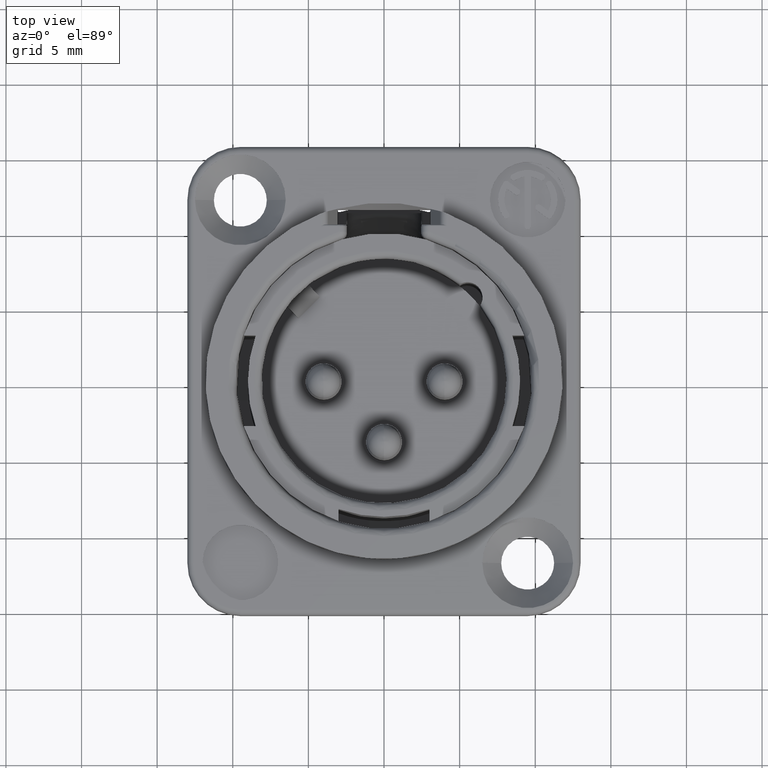
[diagram: clean part render]
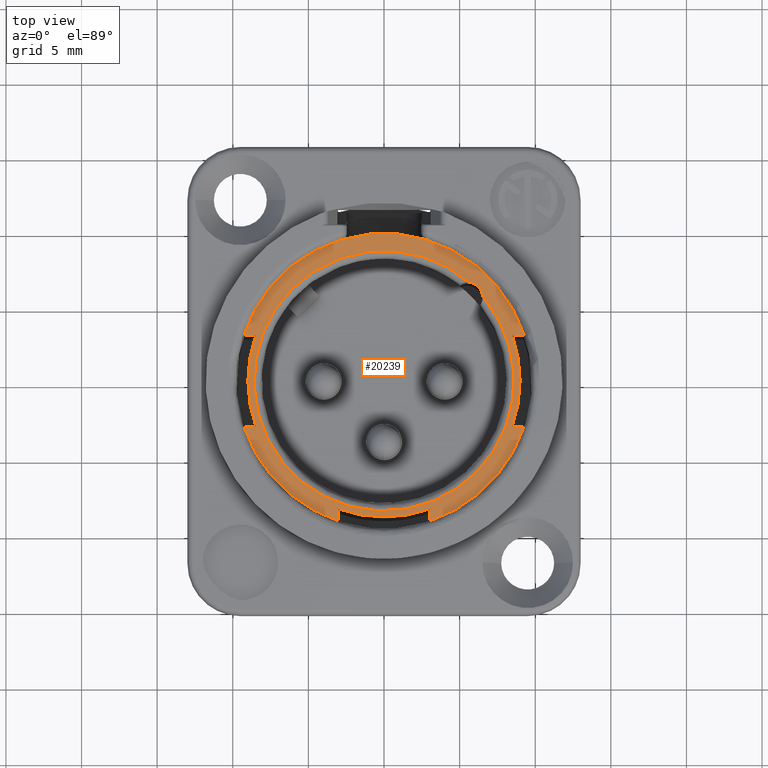
[diagram: same view with one face highlighted and labeled with its STEP entity id]
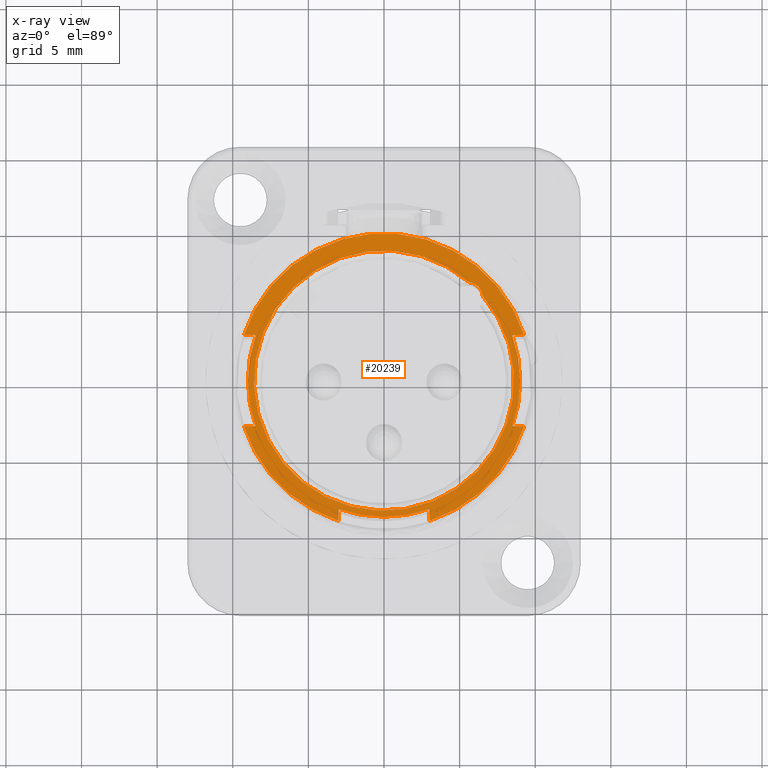
[diagram: x-ray of the same camera — body ghosted, the highlighted face saturated]
A machine part, top view. The second image highlights one B-rep face of the part: STEP entity #20239.
The next image is the same camera in x-ray: the body ghosted, the highlighted face saturated — about 0% of this face is hidden behind the body in this view.
In plain terms, the highlighted planar face has unit normal (0, 0, 1).
Its self-contained STEP definition (entity closure, byte-faithful):
#5133=CARTESIAN_POINT('',(0.E0,0.E0,3.7E0));
#5134=DIRECTION('',(0.E0,0.E0,-1.E0));
#5135=DIRECTION('',(-3.076923076923E-1,-9.514859136041E-1,0.E0));
#5136=AXIS2_PLACEMENT_3D('',#5133,#5134,#5135);
#5170=CARTESIAN_POINT('',(0.E0,0.E0,3.7E0));
#5171=DIRECTION('',(0.E0,0.E0,1.E0));
#5172=DIRECTION('',(3.076923076923E-1,-9.514859136041E-1,0.E0));
#5173=AXIS2_PLACEMENT_3D('',#5170,#5171,#5172);
#5180=CARTESIAN_POINT('',(0.E0,0.E0,3.7E0));
#5181=DIRECTION('',(0.E0,0.E0,1.E0));
#5182=DIRECTION('',(9.514859136041E-1,3.076923076923E-1,0.E0));
#5183=AXIS2_PLACEMENT_3D('',#5180,#5181,#5182);
#5193=DIRECTION('',(-1.E0,0.E0,0.E0));
#5194=VECTOR('',#5193,7.917062834012E-1);
#5195=CARTESIAN_POINT('',(9.276987657640E0,3.E0,3.7E0));
#5196=LINE('',#5195,#5194);
#5197=CARTESIAN_POINT('',(0.E0,0.E0,3.7E0));
#5198=DIRECTION('',(0.E0,0.E0,1.E0));
#5199=DIRECTION('',(9.428090415821E-1,-3.333333333333E-1,0.E0));
#5200=AXIS2_PLACEMENT_3D('',#5197,#5198,#5199);
#5202=DIRECTION('',(1.E0,0.E0,0.E0));
#5203=VECTOR('',#5202,7.917062834012E-1);
#5204=CARTESIAN_POINT('',(8.485281374239E0,-3.E0,3.7E0));
#5205=LINE('',#5204,#5203);
#5206=DIRECTION('',(0.E0,1.E0,0.E0));
#5207=VECTOR('',#5206,7.917062834012E-1);
#5208=CARTESIAN_POINT('',(3.E0,-9.276987657640E0,3.7E0));
#5209=LINE('',#5208,#5207);
#5210=CARTESIAN_POINT('',(0.E0,0.E0,3.7E0));
#5211=DIRECTION('',(0.E0,0.E0,1.E0));
#5212=DIRECTION('',(-3.333333333333E-1,-9.428090415821E-1,0.E0));
#5213=AXIS2_PLACEMENT_3D('',#5210,#5211,#5212);
#5215=DIRECTION('',(0.E0,-1.E0,0.E0));
#5216=VECTOR('',#5215,7.917062834012E-1);
#5217=CARTESIAN_POINT('',(-3.E0,-8.485281374239E0,3.7E0));
#5218=LINE('',#5217,#5216);
#5219=DIRECTION('',(1.E0,0.E0,0.E0));
#5220=VECTOR('',#5219,7.917062834012E-1);
#5221=CARTESIAN_POINT('',(-9.276987657640E0,-3.E0,3.7E0));
#5222=LINE('',#5221,#5220);
#5223=CARTESIAN_POINT('',(0.E0,0.E0,3.7E0));
#5224=DIRECTION('',(0.E0,0.E0,1.E0));
#5225=DIRECTION('',(-9.428090415821E-1,3.333333333333E-1,0.E0));
#5226=AXIS2_PLACEMENT_3D('',#5223,#5224,#5225);
#5228=DIRECTION('',(-1.E0,0.E0,0.E0));
#5229=VECTOR('',#5228,7.917062834012E-1);
#5230=CARTESIAN_POINT('',(-8.485281374239E0,3.E0,3.7E0));
#5231=LINE('',#5230,#5229);
#5232=CARTESIAN_POINT('',(5.515432893255E0,5.515432893255E0,3.7E0));
#5233=DIRECTION('',(0.E0,0.E0,1.E0));
#5234=DIRECTION('',(9.945588454653E-1,1.041763068400E-1,0.E0));
#5235=AXIS2_PLACEMENT_3D('',#5232,#5233,#5234);
#7845=CARTESIAN_POINT('',(6.509991738720E0,5.619609200095E0,3.7E0));
#7858=CARTESIAN_POINT('',(0.E0,0.E0,3.7E0));
#7859=DIRECTION('',(0.E0,0.E0,-1.E0));
#7860=DIRECTION('',(7.569757835721E-1,6.534429302436E-1,0.E0));
#7861=AXIS2_PLACEMENT_3D('',#7858,#7859,#7860);
#12667=CARTESIAN_POINT('',(9.276987657640E0,3.E0,3.7E0));
#12668=CARTESIAN_POINT('',(8.485281374239E0,3.E0,3.7E0));
#12669=VERTEX_POINT('',#12667);
#12670=VERTEX_POINT('',#12668);
#12671=CARTESIAN_POINT('',(8.485281374239E0,-3.E0,3.7E0));
#12672=VERTEX_POINT('',#12671);
#12673=CARTESIAN_POINT('',(9.276987657640E0,-3.E0,3.7E0));
#12674=VERTEX_POINT('',#12673);
#12675=CARTESIAN_POINT('',(3.E0,-9.276987657640E0,3.7E0));
#12676=CARTESIAN_POINT('',(3.E0,-8.485281374239E0,3.7E0));
#12677=VERTEX_POINT('',#12675);
#12678=VERTEX_POINT('',#12676);
#12679=CARTESIAN_POINT('',(-3.E0,-8.485281374239E0,3.7E0));
#12680=VERTEX_POINT('',#12679);
#12681=CARTESIAN_POINT('',(-3.E0,-9.276987657640E0,3.7E0));
#12682=VERTEX_POINT('',#12681);
#12683=CARTESIAN_POINT('',(-9.276987657640E0,-3.E0,3.7E0));
#12684=CARTESIAN_POINT('',(-8.485281374239E0,-3.E0,3.7E0));
#12685=VERTEX_POINT('',#12683);
#12686=VERTEX_POINT('',#12684);
#12687=CARTESIAN_POINT('',(-8.485281374239E0,3.E0,3.7E0));
#12688=VERTEX_POINT('',#12687);
#12689=CARTESIAN_POINT('',(-9.276987657640E0,3.E0,3.7E0));
#12690=VERTEX_POINT('',#12689);
#12805=VERTEX_POINT('',#7845);
#12807=CARTESIAN_POINT('',(5.619609200095E0,6.509991738720E0,3.7E0));
#12808=VERTEX_POINT('',#12807);
#20210=CARTESIAN_POINT('',(0.E0,0.E0,3.7E0));
#20211=DIRECTION('',(0.E0,0.E0,1.E0));
#20212=DIRECTION('',(0.E0,1.E0,0.E0));
#20213=AXIS2_PLACEMENT_3D('',#20210,#20211,#20212);
#20214=PLANE('',#20213);
#20216=ORIENTED_EDGE('',*,*,#20215,.T.);
#20217=ORIENTED_EDGE('',*,*,#19113,.F.);
#20219=ORIENTED_EDGE('',*,*,#20218,.T.);
#20220=ORIENTED_EDGE('',*,*,#20159,.F.);
#20222=ORIENTED_EDGE('',*,*,#20221,.T.);
#20223=ORIENTED_EDGE('',*,*,#19105,.F.);
#20224=ORIENTED_EDGE('',*,*,#20201,.T.);
#20225=ORIENTED_EDGE('',*,*,#20143,.T.);
#20227=ORIENTED_EDGE('',*,*,#20226,.T.);
#20228=ORIENTED_EDGE('',*,*,#19097,.F.);
#20230=ORIENTED_EDGE('',*,*,#20229,.T.);
#20231=ORIENTED_EDGE('',*,*,#20177,.F.);
#20232=EDGE_LOOP('',(#20216,#20217,#20219,#20220,#20222,#20223,#20224,#20225,
#20227,#20228,#20230,#20231));
#20233=FACE_OUTER_BOUND('',#20232,.F.);
#20234=ORIENTED_EDGE('',*,*,#19506,.T.);
#20236=ORIENTED_EDGE('',*,*,#20235,.F.);
#20237=EDGE_LOOP('',(#20234,#20236));
#20238=FACE_BOUND('',#20237,.F.);
#20239=ADVANCED_FACE('',(#20233,#20238),#20214,.T.);
#5137=CIRCLE('',#5136,9.75E0);
#5174=CIRCLE('',#5173,9.75E0);
#5184=CIRCLE('',#5183,9.75E0);
#5201=CIRCLE('',#5200,9.E0);
#5214=CIRCLE('',#5213,9.E0);
#5227=CIRCLE('',#5226,9.E0);
#5236=CIRCLE('',#5235,1.E0);
#7862=CIRCLE('',#7861,8.6E0);
#19097=EDGE_CURVE('',#12688,#12686,#5227,.T.);
#19105=EDGE_CURVE('',#12680,#12678,#5214,.T.);
#19113=EDGE_CURVE('',#12672,#12670,#5201,.T.);
#19506=EDGE_CURVE('',#12805,#12808,#5236,.T.);
#20143=EDGE_CURVE('',#12682,#12685,#5137,.T.);
#20159=EDGE_CURVE('',#12677,#12674,#5174,.T.);
#20177=EDGE_CURVE('',#12669,#12690,#5184,.T.);
#20201=EDGE_CURVE('',#12680,#12682,#5218,.T.);
#20215=EDGE_CURVE('',#12669,#12670,#5196,.T.);
#20218=EDGE_CURVE('',#12672,#12674,#5205,.T.);
#20221=EDGE_CURVE('',#12677,#12678,#5209,.T.);
#20226=EDGE_CURVE('',#12685,#12686,#5222,.T.);
#20229=EDGE_CURVE('',#12688,#12690,#5231,.T.);
#20235=EDGE_CURVE('',#12805,#12808,#7862,.T.);